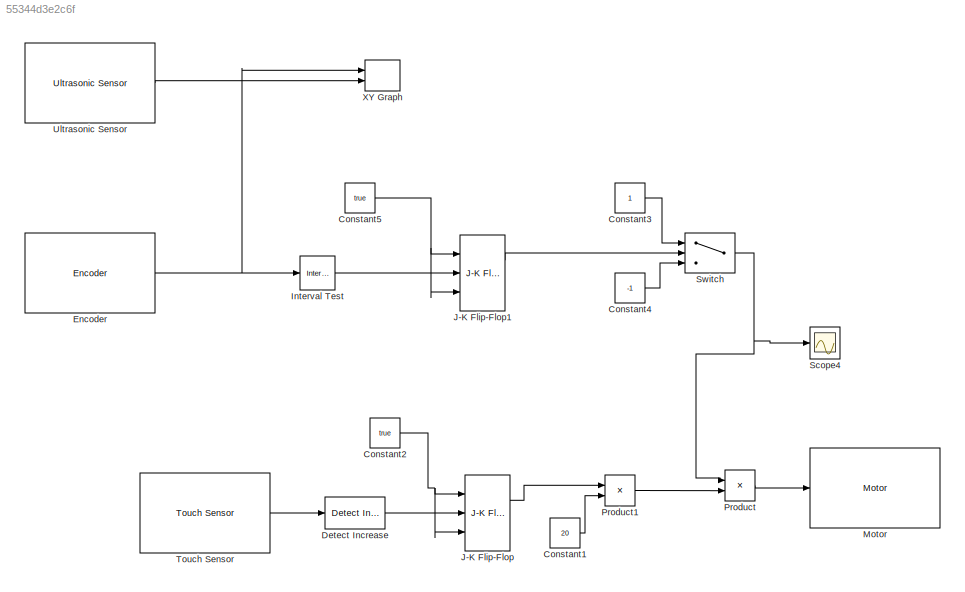
MODEL slx_55344d3e2c6f
KIND model
CONFIG AbsTol = auto
CONFIG EnableMultiTasking = on
CONFIG FixedStep = auto
CONFIG MaxStep = auto
CONFIG MinStep = auto
CONFIG RelTol = 1e-3
CONFIG SampleTimeConstraint = Unconstrained
CONFIG SolverName = FixedStepAuto
CONFIG StartTime = 0.0
CONFIG StopTime = 20.0
BLOCK [Constant] Constant1
  Value = 20
BLOCK [Constant] Constant2
  OutDataTypeStr = boolean
  Value = true
BLOCK [Constant] Constant3
BLOCK [Constant] Constant4
  Value = -1
BLOCK [Constant] Constant5
  OutDataTypeStr = boolean
  Value = true
BLOCK [Reference] Detect Increase  REF=simulink/Logic and Bit
Operations/Detect
Increase
  Ports = [1, 1]
  SourceBlock = simulink/Logic and Bit\nOperations/Detect\nIncrease
  SourceProductBaseCode = SL
  SourceType = Detect Increase
BLOCK [Reference] Encoder  REF=legoev3lib/Encoder
  Ports = [1, 1]
  SourceBlock = legoev3lib/Encoder
  SourceProductBaseCode = LEGOEV3
  SourceType = LEGO MINDSTORMS EV3 Encoder
BLOCK [Reference] Interval Test  REF=simulink/Logic and Bit
Operations/Interval Test
  Ports = [1, 1]
  SourceBlock = simulink/Logic and Bit\nOperations/Interval Test
  SourceProductBaseCode = SL
  SourceType = Interval Test
BLOCK [Reference] J-K Flip-Flop  REF=simulink_extras/Flip Flops/J-K
Flip-Flop
  Ports = [3, 2]
  SourceBlock = simulink_extras/Flip Flops/J-K\nFlip-Flop
  SourceProductBaseCode = SL
  SourceType = JKFlipFlop
BLOCK [Reference] J-K Flip-Flop1  REF=simulink_extras/Flip Flops/J-K
Flip-Flop
  Ports = [3, 2]
  SourceBlock = simulink_extras/Flip Flops/J-K\nFlip-Flop
  SourceProductBaseCode = SL
  SourceType = JKFlipFlop
BLOCK [Reference] Motor  REF=legoev3lib/Motor
  Ports = [1]
  SourceBlock = legoev3lib/Motor
  SourceProductBaseCode = LEGOEV3
  SourceType = LEGO MINDSTORMS EV3 Motor
BLOCK [Product] Product
  Ports = [2, 1]
BLOCK [Product] Product1
  Ports = [2, 1]
BLOCK [Scope] Scope4
  Floating = off
  NumInputPorts = 1
  Ports = [1]
  ScopeSpecificationString = Simulink.scopes.TimeScopeBlockCfg('CurrentConfiguration', extmgr.ConfigurationSet(extmgr.Configuration('Core','General UI',true),extmgr.Configuration('Core','Source UI',true),extmgr.Configuration('Sources','WiredSimulink',true,'DataLoggingVariableName','ScopeData4'),extmgr.Configuration('Visuals','Time Domain',true,'SerializedDisplays',{struct('MinYLimReal','-1.25','MaxYLimReal','1.25','YLabelReal...<+1403ch>
BLOCK [Switch] Switch
  Criteria = u2 > Threshold
  InputSameDT = off
  SaturateOnIntegerOverflow = off
BLOCK [Reference] Touch Sensor  REF=legoev3lib/Touch Sensor
  Ports = [0, 1]
  SourceBlock = legoev3lib/Touch Sensor
  SourceProductBaseCode = LEGOEV3
  SourceType = LEGO MINDSTORMS EV3 Touch Sensor
BLOCK [Reference] Ultrasonic Sensor  REF=legoev3lib/Ultrasonic Sensor
  Ports = [0, 1]
  SourceBlock = legoev3lib/Ultrasonic Sensor
  SourceProductBaseCode = LEGOEV3
  SourceType = LEGO MINDSTORMS EV3 Ultrasonic Sensor
BLOCK [Record] XY Graph
  CompatibilityTag = XY
  FileSettingsInternal = {"entries":[{"content":{"excelSettings":{"content":{},"type":"Streamout.ExcelSettings"}},"type":"Streamout.FileSettingStorage","uuid":"0d61d9b8-e41d-4b6d-b978-dd19d6224bbf"}],"packageUris":["http://schema.mathworks.com/mf0/streamout_blocks/R2020a"],"version":"1.0"}
  Layout = [1 1]
  Ports = [2]
  SignalsInternal = {"entries":[{"content":{"signals":[{"content":{"blockPath":["exercise_32/XY Graph"],"channel":[],"dimensions":[1],"domain":"exercise_32/XY Graph","lineColor":"#139fff","plots":[1],"port":2,"sid":["19"],"signalID":55031,"signalName":"Ultrasonic Sensor"},"type":"RecordBlkView.Signal","uuid":"5f5e26c7-c931-410d-8c5a-c5322973e894"},{"content":{"blockPath":["exercise_32/XY Graph"],"channel":[],"dimensi...<+391ch>
  VisualizationBindings = {"xyplotplugin":{"info":[{"series":[{"bindingParametersList":[{"parameter":"X-Axis","signalID":55039,"signalName":"Encoder"},{"parameter":"Y-Axis","signalID":55031,"signalName":"Ultrasonic Sensor"}],"seriesID":52265}],"subplotID":1}]}}
LINE Constant1:1 -> Product1:2
NET Constant2:1 -> J-K Flip-Flop:1, J-K Flip-Flop:3
LINE Constant3:1 -> Switch:1
LINE Constant4:1 -> Switch:3
NET Constant5:1 -> J-K Flip-Flop1:1, J-K Flip-Flop1:3
LINE Detect Increase:1 -> J-K Flip-Flop:2
NET Encoder:1 -> Interval Test:1, XY Graph:1
LINE Interval Test:1 -> J-K Flip-Flop1:2
LINE J-K Flip-Flop1:1 -> Switch:2
LINE J-K Flip-Flop:1 -> Product1:1
LINE Product1:1 -> Product:2
LINE Product:1 -> Motor:1
NET Switch:1 -> Product:1, Scope4:1
LINE Touch Sensor:1 -> Detect Increase:1
LINE Ultrasonic Sensor:1 -> XY Graph:2
note: NET lines group one-source signal fan-out (src -> all destinations, sorted); 1:1 wires keep LINE
